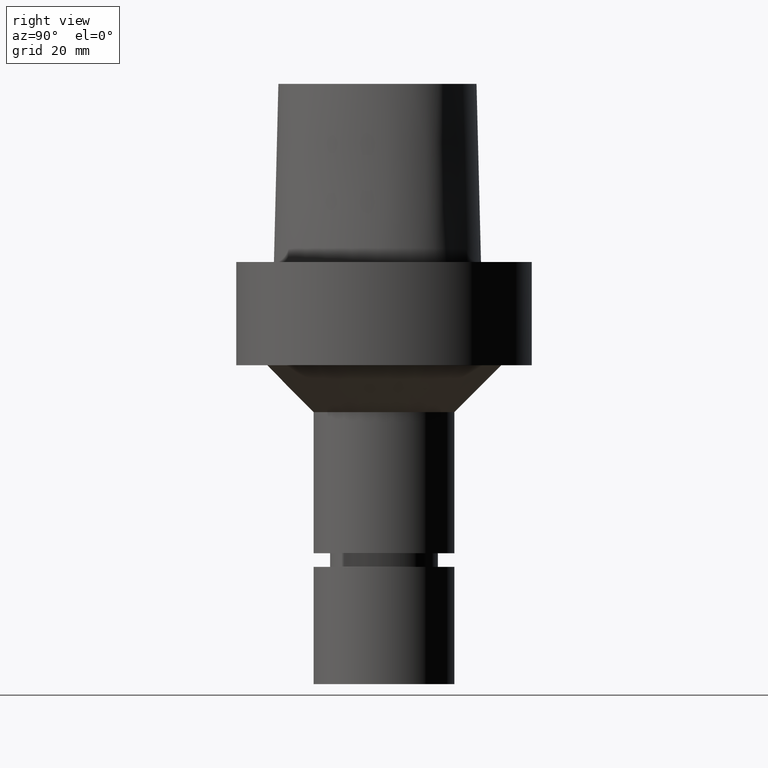
[diagram: clean part render]
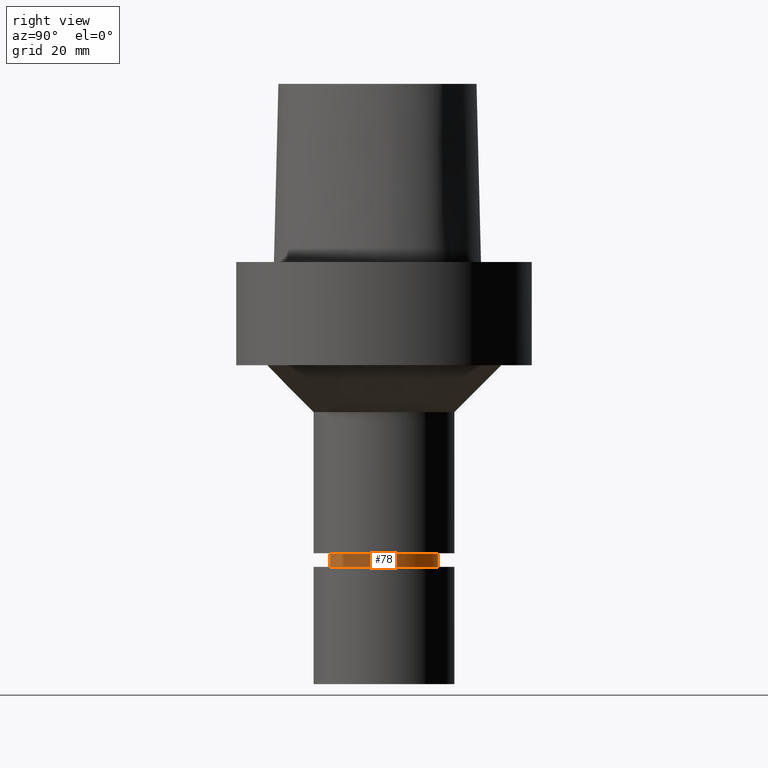
[diagram: same view with one face highlighted and labeled with its STEP entity id]
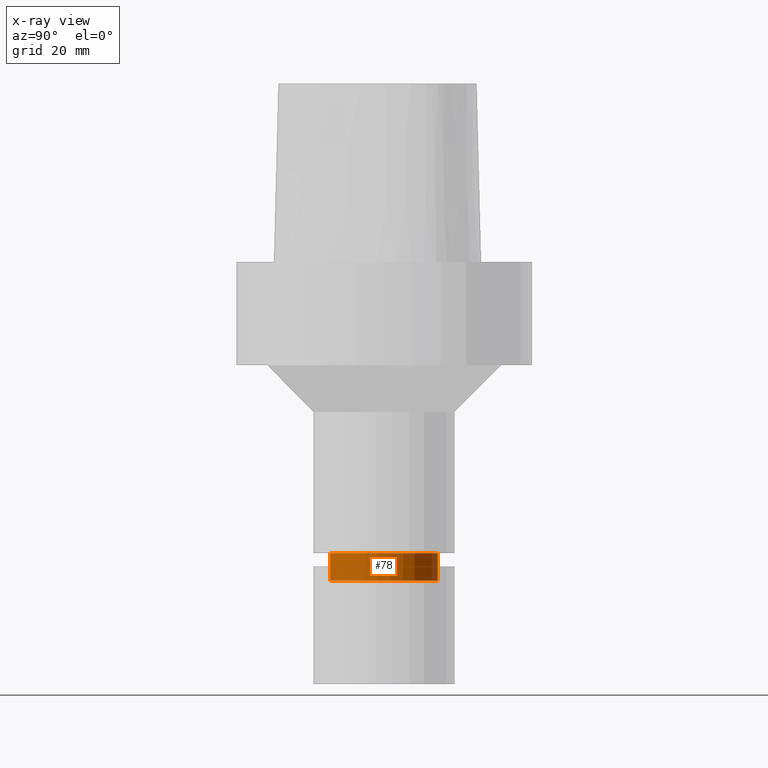
[diagram: x-ray of the same camera — body ghosted, the highlighted face saturated]
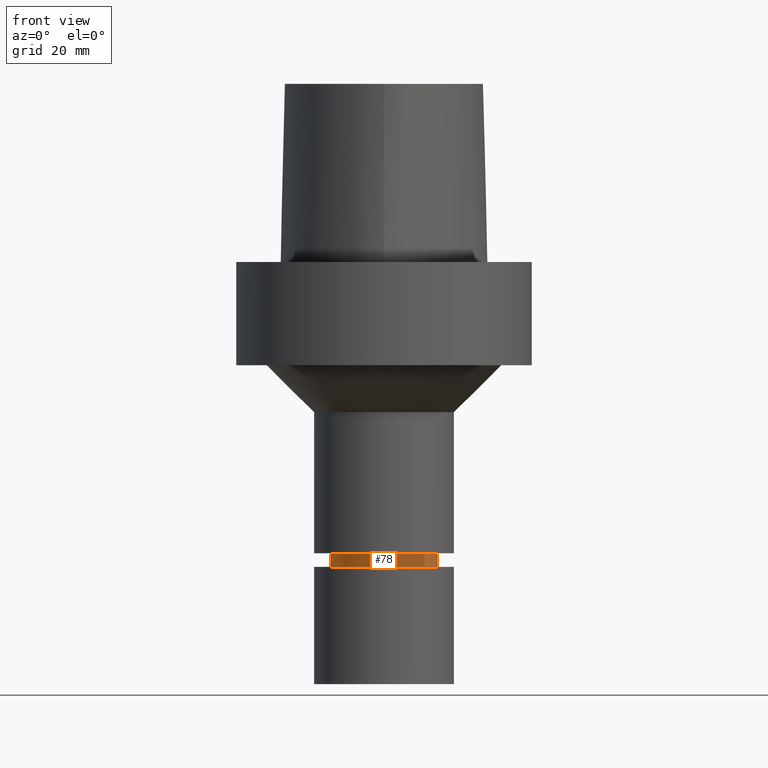
[diagram: same view with one face highlighted and labeled with its STEP entity id]
A machine part, right view. The second image highlights one B-rep face of the part: STEP entity #78.
The next image is the same camera in x-ray: the body ghosted, the highlighted face saturated — about 0% of this face is hidden behind the body in this view.
A second angle (front view) of the same face is appended — the face is thin or edge-on in the first view.
In plain terms, the highlighted cylindrical surface (bore or boss wall) has radius 11.5 mm, axis along (0, 0, -1).
Its self-contained STEP definition (entity closure, byte-faithful):
#78=ADVANCED_FACE('Unnamed[1]',(#199,#200),#201,.T.);
#95=EDGE_CURVE('Unnamed[1]',#226,#226,#227,.T.);
#101=EDGE_CURVE('Unnamed[1]',#234,#234,#235,.T.);
#199=FACE_BOUND('',#359,.T.);
#200=FACE_BOUND('',#360,.T.);
#201=CYLINDRICAL_SURFACE('',#361,11.4999999999964);
#226=VERTEX_POINT('',#411);
#227=CIRCLE('',#412,11.5000000000021);
#234=VERTEX_POINT('',#422);
#235=CIRCLE('',#423,11.4999999999907);
#359=EDGE_LOOP('',(#744));
#360=EDGE_LOOP('',(#745));
#361=AXIS2_PLACEMENT_3D('',#746,#747,#748);
#411=CARTESIAN_POINT('',(4.15836933111325E-015,11.5000000000021,-67.9113248653973));
#412=AXIS2_PLACEMENT_3D('',#763,#764,#765);
#422=CARTESIAN_POINT('',(3.80252831835845E-015,11.4999999999907,-62.1000001144153));
#423=AXIS2_PLACEMENT_3D('',#772,#773,#774);
#744=ORIENTED_EDGE('',*,*,#95,.F.);
#745=ORIENTED_EDGE('',*,*,#101,.T.);
#746=CARTESIAN_POINT('',(3.98044882473584E-015,7.96089764947169E-015,-65.0056624899063));
#747=DIRECTION('',(6.12323399573676E-017,1.22464679914735E-016,-1.0));
#748=DIRECTION('',(-1.23259516440783E-032,1.0,1.22464679914735E-016));
#763=CARTESIAN_POINT('',(4.15836933111325E-015,8.31673866222649E-015,-67.9113248653973));
#764=DIRECTION('',(6.12323399573676E-017,1.22464679914735E-016,-1.0));
#765=DIRECTION('',(-1.23259516440783E-032,1.0,1.22464679914735E-016));
#772=CARTESIAN_POINT('',(3.80252831835845E-015,7.60505663671689E-015,-62.1000001144153));
#773=DIRECTION('',(6.12323399573677E-017,1.22464679914735E-016,-1.0));
#774=DIRECTION('',(-1.23259516440783E-032,1.0,1.22464679914735E-016));